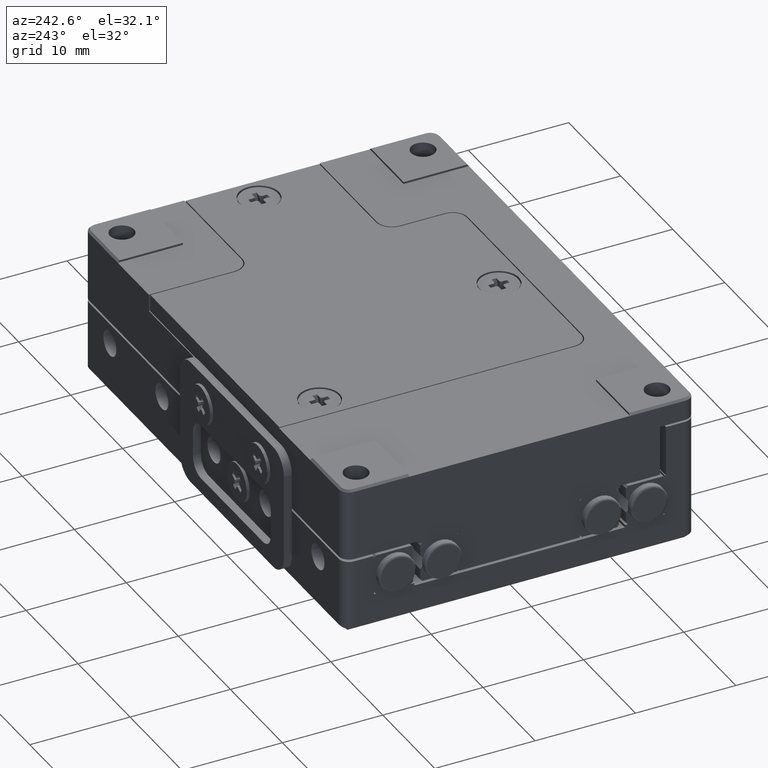
[diagram: clean part render]
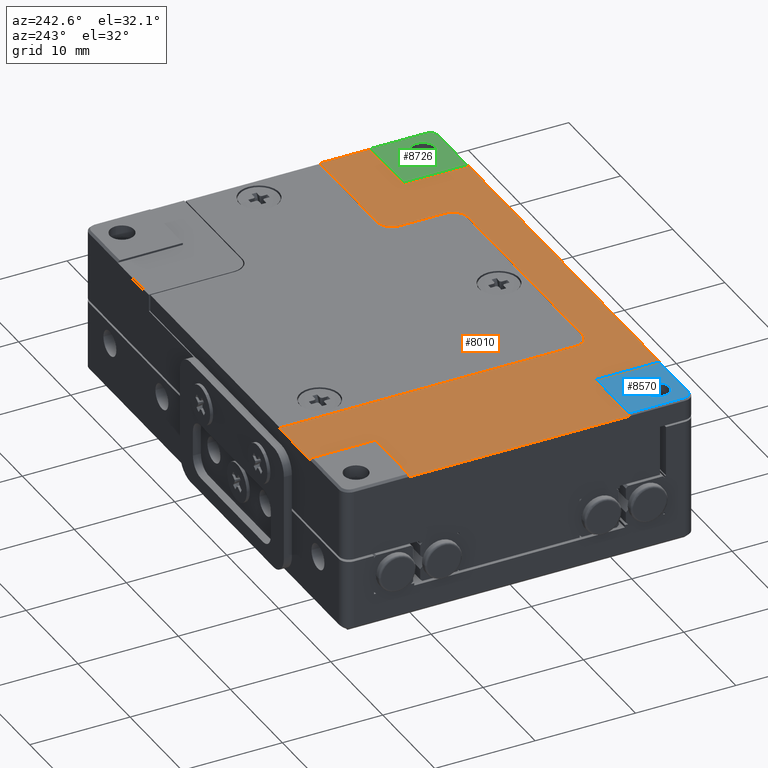
[diagram: same view with three faces highlighted in distinct colors, each labeled with its STEP entity id]
A machine part, auxiliary view with three faces highlighted in distinct colors.
Their STEP definitions:

[orange] entity #8010 — the highlighted planar face has unit normal (0, 0, 1).
#81 = CARTESIAN_POINT ( 'NONE',  ( -15.86842105263155212, 12.95546558704454121, 11.25000000000000000 ) ) ;
#145 = ORIENTED_EDGE ( 'NONE', *, *, #9059, .F. ) ;
#163 = VERTEX_POINT ( 'NONE', #5777 ) ;
#313 = LINE ( 'NONE', #11915, #6440 ) ;
#815 = EDGE_CURVE ( 'NONE', #12212, #1605, #7747, .T. ) ;
#889 = LINE ( 'NONE', #8131, #6152 ) ;
#893 = LINE ( 'NONE', #9526, #9835 ) ;
#938 = VECTOR ( 'NONE', #11252, 1000.000000000000000 ) ;
#1027 = VERTEX_POINT ( 'NONE', #7060 ) ;
#1207 = CARTESIAN_POINT ( 'NONE',  ( 21.13157894736844966, -15.54453441295544991, 11.25000000000000000 ) ) ;
#1507 = CARTESIAN_POINT ( 'NONE',  ( 27.63157894736844966, 12.95546558704454121, 11.25000000000000000 ) ) ;
#1577 = DIRECTION ( 'NONE',  ( 1.000000000000000000, 0.000000000000000000, 0.000000000000000000 ) ) ;
#1605 = VERTEX_POINT ( 'NONE', #6415 ) ;
#1650 = ORIENTED_EDGE ( 'NONE', *, *, #815, .F. ) ;
#1767 = FACE_OUTER_BOUND ( 'NONE', #12869, .T. ) ;
#1816 = DIRECTION ( 'NONE',  ( 1.000000000000000000, 0.000000000000000000, 0.000000000000000000 ) ) ;
#1847 = AXIS2_PLACEMENT_3D ( 'NONE', #9768, #2194, #10726 ) ;
#1850 = EDGE_CURVE ( 'NONE', #163, #12750, #5713, .T. ) ;
#1946 = VECTOR ( 'NONE', #13096, 1000.000000000000000 ) ;
#1980 = CARTESIAN_POINT ( 'NONE',  ( 15.13157894736844966, -16.54453441295544636, 11.25000000000000000 ) ) ;
#2194 = DIRECTION ( 'NONE',  ( 0.000000000000000000, 0.000000000000000000, -1.000000000000000000 ) ) ;
#2678 = LINE ( 'NONE', #13168, #1946 ) ;
#2783 = DIRECTION ( 'NONE',  ( 0.000000000000000000, 0.000000000000000000, 1.000000000000000000 ) ) ;
#2837 = CARTESIAN_POINT ( 'NONE',  ( -9.868421052631569879, 12.95546558704454121, 11.25000000000000000 ) ) ;
#2972 = CARTESIAN_POINT ( 'NONE',  ( 27.63157894736844966, -15.54453441295544991, 11.25000000000000000 ) ) ;
#3098 = EDGE_CURVE ( 'NONE', #1605, #4472, #6192, .T. ) ;
#3441 = CIRCLE ( 'NONE', #4101, 1.499999999999999556 ) ;
#3446 = CARTESIAN_POINT ( 'NONE',  ( -22.36842105263154679, -15.54453441295544991, 11.25000000000000000 ) ) ;
#3548 = CARTESIAN_POINT ( 'NONE',  ( -22.36842105263154679, 12.95546558704454121, 11.25000000000000000 ) ) ;
#3920 = CARTESIAN_POINT ( 'NONE',  ( 15.13157894736844966, -12.04453441295548011, 11.25000000000000000 ) ) ;
#3985 = ORIENTED_EDGE ( 'NONE', *, *, #3098, .F. ) ;
#4051 = VECTOR ( 'NONE', #1816, 1000.000000000000000 ) ;
#4075 = LINE ( 'NONE', #13518, #10079 ) ;
#4101 = AXIS2_PLACEMENT_3D ( 'NONE', #5019, #9236, #13472 ) ;
#4231 = ORIENTED_EDGE ( 'NONE', *, *, #13051, .F. ) ;
#4272 = LINE ( 'NONE', #1207, #5839 ) ;
#4338 = EDGE_CURVE ( 'NONE', #4890, #1027, #4272, .T. ) ;
#4440 = ORIENTED_EDGE ( 'NONE', *, *, #9043, .F. ) ;
#4472 = VERTEX_POINT ( 'NONE', #6701 ) ;
#4563 = CARTESIAN_POINT ( 'NONE',  ( -9.868421052631569879, 12.95546558704454121, 11.25000000000000000 ) ) ;
#4696 = CARTESIAN_POINT ( 'NONE',  ( 27.63157894736844966, -10.54453441295546057, 11.25000000000000000 ) ) ;
#4736 = EDGE_CURVE ( 'NONE', #9769, #5182, #7404, .T. ) ;
#4890 = VERTEX_POINT ( 'NONE', #8782 ) ;
#4946 = DIRECTION ( 'NONE',  ( -1.000000000000000000, 0.000000000000000000, 0.000000000000000000 ) ) ;
#5019 = CARTESIAN_POINT ( 'NONE',  ( 13.63157894736841946, -16.54453441295544636, 11.25000000000000000 ) ) ;
#5182 = VERTEX_POINT ( 'NONE', #10227 ) ;
#5250 = CARTESIAN_POINT ( 'NONE',  ( -15.86842105263155212, -15.54453441295544991, 11.25000000000000000 ) ) ;
#5713 = LINE ( 'NONE', #3548, #9596 ) ;
#5777 = CARTESIAN_POINT ( 'NONE',  ( -22.36842105263154679, 6.455465587044540321, 11.25000000000000000 ) ) ;
#5839 = VECTOR ( 'NONE', #10648, 1000.000000000000000 ) ;
#5875 = CARTESIAN_POINT ( 'NONE',  ( 13.63157894736841946, -18.04453441295544991, 11.25000000000000000 ) ) ;
#5877 = VECTOR ( 'NONE', #9801, 1000.000000000000000 ) ;
#5908 = DIRECTION ( 'NONE',  ( -1.000000000000000000, 0.000000000000000000, 0.000000000000000000 ) ) ;
#5940 = EDGE_CURVE ( 'NONE', #12593, #9769, #2678, .T. ) ;
#5993 = CARTESIAN_POINT ( 'NONE',  ( 27.63157894736844966, -22.04453441295544991, 11.25000000000000000 ) ) ;
#6025 = PLANE ( 'NONE',  #9081 ) ;
#6028 = VERTEX_POINT ( 'NONE', #8376 ) ;
#6068 = VECTOR ( 'NONE', #10899, 1000.000000000000000 ) ;
#6106 = DIRECTION ( 'NONE',  ( 1.000000000000000000, 0.000000000000000000, 0.000000000000000000 ) ) ;
#6152 = VECTOR ( 'NONE', #4946, 1000.000000000000000 ) ;
#6171 = LINE ( 'NONE', #12400, #13175 ) ;
#6192 = CIRCLE ( 'NONE', #11722, 1.499999999999999556 ) ;
#6199 = ORIENTED_EDGE ( 'NONE', *, *, #4736, .F. ) ;
#6415 = CARTESIAN_POINT ( 'NONE',  ( -9.868421052631569879, -16.54453441295544636, 11.25000000000000000 ) ) ;
#6438 = VERTEX_POINT ( 'NONE', #4696 ) ;
#6440 = VECTOR ( 'NONE', #10659, 1000.000000000000000 ) ;
#6493 = VECTOR ( 'NONE', #5908, 1000.000000000000000 ) ;
#6701 = CARTESIAN_POINT ( 'NONE',  ( -8.368421052631559220, -18.04453441295544991, 11.25000000000000000 ) ) ;
#6751 = LINE ( 'NONE', #9022, #5877 ) ;
#6815 = CARTESIAN_POINT ( 'NONE',  ( -8.368421052631569879, -16.54453441295544636, 11.25000000000000000 ) ) ;
#6984 = CARTESIAN_POINT ( 'NONE',  ( -15.86842105263155212, -22.04453441295544991, 11.25000000000000000 ) ) ;
#7049 = ORIENTED_EDGE ( 'NONE', *, *, #8618, .F. ) ;
#7060 = CARTESIAN_POINT ( 'NONE',  ( 21.13157894736844966, -22.04453441295544991, 11.25000000000000000 ) ) ;
#7072 = DIRECTION ( 'NONE',  ( -1.000000000000000000, 0.000000000000000000, 0.000000000000000000 ) ) ;
#7120 = LINE ( 'NONE', #11334, #4051 ) ;
#7404 = CIRCLE ( 'NONE', #1847, 1.499999999999999556 ) ;
#7527 = EDGE_CURVE ( 'NONE', #4472, #9722, #313, .T. ) ;
#7747 = LINE ( 'NONE', #4563, #8085 ) ;
#8010 = ADVANCED_FACE ( 'NONE', ( #1767 ), #6025, .T. ) ;
#8085 = VECTOR ( 'NONE', #12049, 1000.000000000000000 ) ;
#8131 = CARTESIAN_POINT ( 'NONE',  ( -22.36842105263154679, -15.54453441295544991, 11.25000000000000000 ) ) ;
#8161 = CARTESIAN_POINT ( 'NONE',  ( 0.000000000000000000, 0.000000000000000000, 11.25000000000000000 ) ) ;
#8376 = CARTESIAN_POINT ( 'NONE',  ( -15.86842105263155212, 6.455465587044540321, 11.25000000000000000 ) ) ;
#8408 = DIRECTION ( 'NONE',  ( 0.000000000000000000, 1.000000000000000000, 0.000000000000000000 ) ) ;
#8436 = ORIENTED_EDGE ( 'NONE', *, *, #10437, .F. ) ;
#8441 = ORIENTED_EDGE ( 'NONE', *, *, #4338, .F. ) ;
#8499 = ORIENTED_EDGE ( 'NONE', *, *, #11590, .T. ) ;
#8618 = EDGE_CURVE ( 'NONE', #163, #6028, #6751, .T. ) ;
#8782 = CARTESIAN_POINT ( 'NONE',  ( 21.13157894736844966, -15.54453441295544991, 11.25000000000000000 ) ) ;
#8869 = EDGE_CURVE ( 'NONE', #9722, #12593, #3441, .T. ) ;
#9022 = CARTESIAN_POINT ( 'NONE',  ( -15.86842105263155212, 6.455465587044540321, 11.25000000000000000 ) ) ;
#9043 = EDGE_CURVE ( 'NONE', #5182, #6438, #4075, .T. ) ;
#9059 = EDGE_CURVE ( 'NONE', #13416, #4890, #6171, .T. ) ;
#9081 = AXIS2_PLACEMENT_3D ( 'NONE', #8161, #12394, #12876 ) ;
#9088 = VERTEX_POINT ( 'NONE', #13661 ) ;
#9236 = DIRECTION ( 'NONE',  ( 0.000000000000000000, 0.000000000000000000, 1.000000000000000000 ) ) ;
#9526 = CARTESIAN_POINT ( 'NONE',  ( -15.86842105263155212, -15.54453441295544991, 11.25000000000000000 ) ) ;
#9596 = VECTOR ( 'NONE', #12855, 1000.000000000000000 ) ;
#9722 = VERTEX_POINT ( 'NONE', #5875 ) ;
#9768 = CARTESIAN_POINT ( 'NONE',  ( 16.63157894736844966, -12.04453441295546057, 11.25000000000000000 ) ) ;
#9769 = VERTEX_POINT ( 'NONE', #3920 ) ;
#9801 = DIRECTION ( 'NONE',  ( 1.000000000000000000, 1.334402673828311860E-16, 0.000000000000000000 ) ) ;
#9835 = VECTOR ( 'NONE', #8408, 1000.000000000000000 ) ;
#9926 = ORIENTED_EDGE ( 'NONE', *, *, #11429, .F. ) ;
#10079 = VECTOR ( 'NONE', #6106, 1000.000000000000000 ) ;
#10141 = LINE ( 'NONE', #5993, #938 ) ;
#10227 = CARTESIAN_POINT ( 'NONE',  ( 16.63157894736844966, -10.54453441295546057, 11.25000000000000000 ) ) ;
#10437 = EDGE_CURVE ( 'NONE', #11323, #12750, #889, .T. ) ;
#10648 = DIRECTION ( 'NONE',  ( 0.000000000000000000, -1.000000000000000000, 0.000000000000000000 ) ) ;
#10659 = DIRECTION ( 'NONE',  ( 1.000000000000000000, 0.000000000000000000, 0.000000000000000000 ) ) ;
#10726 = DIRECTION ( 'NONE',  ( -1.000000000000000000, 0.000000000000000000, 0.000000000000000000 ) ) ;
#10842 = LINE ( 'NONE', #81, #6068 ) ;
#10899 = DIRECTION ( 'NONE',  ( 0.000000000000000000, 1.000000000000000000, 0.000000000000000000 ) ) ;
#11026 = ORIENTED_EDGE ( 'NONE', *, *, #5940, .F. ) ;
#11096 = VERTEX_POINT ( 'NONE', #6984 ) ;
#11167 = EDGE_CURVE ( 'NONE', #11096, #1027, #7120, .T. ) ;
#11252 = DIRECTION ( 'NONE',  ( 9.912705577010319386E-17, 1.000000000000000000, 0.000000000000000000 ) ) ;
#11323 = VERTEX_POINT ( 'NONE', #5250 ) ;
#11334 = CARTESIAN_POINT ( 'NONE',  ( -22.36842105263154679, -22.04453441295544991, 11.25000000000000000 ) ) ;
#11429 = EDGE_CURVE ( 'NONE', #6028, #9088, #10842, .T. ) ;
#11506 = ORIENTED_EDGE ( 'NONE', *, *, #1850, .T. ) ;
#11590 = EDGE_CURVE ( 'NONE', #13416, #6438, #10141, .T. ) ;
#11722 = AXIS2_PLACEMENT_3D ( 'NONE', #6815, #2783, #1577 ) ;
#11915 = CARTESIAN_POINT ( 'NONE',  ( -8.368421052631559220, -18.04453441295544991, 11.25000000000000000 ) ) ;
#12031 = EDGE_CURVE ( 'NONE', #12212, #9088, #13104, .T. ) ;
#12049 = DIRECTION ( 'NONE',  ( 1.176083712526649935E-16, -1.000000000000000000, 0.000000000000000000 ) ) ;
#12212 = VERTEX_POINT ( 'NONE', #2837 ) ;
#12394 = DIRECTION ( 'NONE',  ( 0.000000000000000000, 0.000000000000000000, 1.000000000000000000 ) ) ;
#12400 = CARTESIAN_POINT ( 'NONE',  ( 27.63157894736844966, -15.54453441295544991, 11.25000000000000000 ) ) ;
#12593 = VERTEX_POINT ( 'NONE', #1980 ) ;
#12750 = VERTEX_POINT ( 'NONE', #3446 ) ;
#12838 = ORIENTED_EDGE ( 'NONE', *, *, #11167, .T. ) ;
#12855 = DIRECTION ( 'NONE',  ( 1.982541115402064617E-16, -1.000000000000000000, 0.000000000000000000 ) ) ;
#12869 = EDGE_LOOP ( 'NONE', ( #4440, #6199, #11026, #13647, #13326, #3985, #1650, #13159, #9926, #7049, #11506, #8436, #4231, #12838, #8441, #145, #8499 ) ) ;
#12876 = DIRECTION ( 'NONE',  ( 1.000000000000000000, 0.000000000000000000, 0.000000000000000000 ) ) ;
#13051 = EDGE_CURVE ( 'NONE', #11096, #11323, #893, .T. ) ;
#13096 = DIRECTION ( 'NONE',  ( 0.000000000000000000, 1.000000000000000000, 0.000000000000000000 ) ) ;
#13104 = LINE ( 'NONE', #1507, #6493 ) ;
#13159 = ORIENTED_EDGE ( 'NONE', *, *, #12031, .T. ) ;
#13168 = CARTESIAN_POINT ( 'NONE',  ( 15.13157894736844966, -16.54453441295544636, 11.25000000000000000 ) ) ;
#13175 = VECTOR ( 'NONE', #7072, 1000.000000000000000 ) ;
#13326 = ORIENTED_EDGE ( 'NONE', *, *, #7527, .F. ) ;
#13416 = VERTEX_POINT ( 'NONE', #2972 ) ;
#13472 = DIRECTION ( 'NONE',  ( 1.000000000000000000, 0.000000000000000000, 0.000000000000000000 ) ) ;
#13518 = CARTESIAN_POINT ( 'NONE',  ( 16.63157894736844966, -10.54453441295546057, 11.25000000000000000 ) ) ;
#13647 = ORIENTED_EDGE ( 'NONE', *, *, #8869, .F. ) ;
#13661 = CARTESIAN_POINT ( 'NONE',  ( -15.86842105263155212, 12.95546558704454121, 11.25000000000000000 ) ) ;

[blue] entity #8570 — the highlighted planar face has unit normal (0, 0, -1).
#435 = CARTESIAN_POINT ( 'NONE',  ( -22.16842105263154750, -15.54453441295544991, 11.44999999999999929 ) ) ;
#470 = DIRECTION ( 'NONE',  ( 0.000000000000000000, 0.000000000000000000, -1.000000000000000000 ) ) ;
#533 = VERTEX_POINT ( 'NONE', #9780 ) ;
#784 = ORIENTED_EDGE ( 'NONE', *, *, #12944, .T. ) ;
#886 = VERTEX_POINT ( 'NONE', #435 ) ;
#896 = CARTESIAN_POINT ( 'NONE',  ( -22.36842105263154679, -15.54453441295544991, 11.44999999999999929 ) ) ;
#1198 = CIRCLE ( 'NONE', #2976, 1.199999999999999734 ) ;
#1344 = VERTEX_POINT ( 'NONE', #5529 ) ;
#1657 = CARTESIAN_POINT ( 'NONE',  ( -21.36842105263155034, -21.04453441295544636, 11.44999999999999929 ) ) ;
#1948 = AXIS2_PLACEMENT_3D ( 'NONE', #1657, #11033, #5781 ) ;
#2154 = LINE ( 'NONE', #896, #3406 ) ;
#2266 = CARTESIAN_POINT ( 'NONE',  ( -18.66842105263155460, -19.54453441295544991, 11.44999999999999929 ) ) ;
#2497 = PLANE ( 'NONE',  #5210 ) ;
#2538 = LINE ( 'NONE', #9960, #5972 ) ;
#2695 = EDGE_LOOP ( 'NONE', ( #784, #2778 ) ) ;
#2778 = ORIENTED_EDGE ( 'NONE', *, *, #8661, .T. ) ;
#2795 = CARTESIAN_POINT ( 'NONE',  ( -19.86842105263155389, -19.54453441295544991, 11.44999999999999929 ) ) ;
#2976 = AXIS2_PLACEMENT_3D ( 'NONE', #5716, #8760, #11890 ) ;
#3026 = EDGE_CURVE ( 'NONE', #9553, #4256, #9936, .T. ) ;
#3252 = LINE ( 'NONE', #3380, #3967 ) ;
#3380 = CARTESIAN_POINT ( 'NONE',  ( -15.86842105263155212, -15.54453441295544991, 11.44999999999999929 ) ) ;
#3406 = VECTOR ( 'NONE', #7445, 1000.000000000000000 ) ;
#3786 = DIRECTION ( 'NONE',  ( 1.982541115402064617E-16, -1.000000000000000000, 0.000000000000000000 ) ) ;
#3967 = VECTOR ( 'NONE', #4490, 1000.000000000000000 ) ;
#4256 = VERTEX_POINT ( 'NONE', #8503 ) ;
#4490 = DIRECTION ( 'NONE',  ( 0.000000000000000000, 1.000000000000000000, 0.000000000000000000 ) ) ;
#4732 = CARTESIAN_POINT ( 'NONE',  ( 0.000000000000000000, 0.000000000000000000, 11.44999999999999929 ) ) ;
#5065 = EDGE_CURVE ( 'NONE', #1344, #886, #2154, .T. ) ;
#5210 = AXIS2_PLACEMENT_3D ( 'NONE', #4732, #470, #13114 ) ;
#5529 = CARTESIAN_POINT ( 'NONE',  ( -15.86842105263155212, -15.54453441295544991, 11.44999999999999929 ) ) ;
#5630 = AXIS2_PLACEMENT_3D ( 'NONE', #2795, #11320, #8781 ) ;
#5716 = CARTESIAN_POINT ( 'NONE',  ( -19.86842105263155389, -19.54453441295544991, 11.44999999999999929 ) ) ;
#5773 = ORIENTED_EDGE ( 'NONE', *, *, #5065, .T. ) ;
#5781 = DIRECTION ( 'NONE',  ( -1.000000000000000000, 0.000000000000000000, 0.000000000000000000 ) ) ;
#5972 = VECTOR ( 'NONE', #3786, 1000.000000000000000 ) ;
#6198 = EDGE_CURVE ( 'NONE', #533, #1344, #3252, .T. ) ;
#6366 = VECTOR ( 'NONE', #7238, 1000.000000000000000 ) ;
#6436 = EDGE_CURVE ( 'NONE', #886, #9553, #2538, .T. ) ;
#6959 = VERTEX_POINT ( 'NONE', #8071 ) ;
#7238 = DIRECTION ( 'NONE',  ( 1.000000000000000000, 0.000000000000000000, 0.000000000000000000 ) ) ;
#7431 = EDGE_LOOP ( 'NONE', ( #10171, #11044, #13418, #5773, #13690 ) ) ;
#7445 = DIRECTION ( 'NONE',  ( -1.000000000000000000, 0.000000000000000000, 0.000000000000000000 ) ) ;
#8071 = CARTESIAN_POINT ( 'NONE',  ( -21.06842105263155318, -19.54453441295544991, 11.44999999999999929 ) ) ;
#8266 = CIRCLE ( 'NONE', #5630, 1.199999999999999734 ) ;
#8503 = CARTESIAN_POINT ( 'NONE',  ( -21.36842105263155034, -21.84453441295550036, 11.44999999999999929 ) ) ;
#8570 = ADVANCED_FACE ( 'NONE', ( #10699, #9462 ), #2497, .F. ) ;
#8661 = EDGE_CURVE ( 'NONE', #9217, #6959, #1198, .T. ) ;
#8760 = DIRECTION ( 'NONE',  ( 0.000000000000000000, 0.000000000000000000, -1.000000000000000000 ) ) ;
#8781 = DIRECTION ( 'NONE',  ( -1.000000000000000000, 0.000000000000000000, 0.000000000000000000 ) ) ;
#9217 = VERTEX_POINT ( 'NONE', #2266 ) ;
#9240 = LINE ( 'NONE', #12494, #6366 ) ;
#9462 = FACE_BOUND ( 'NONE', #2695, .T. ) ;
#9484 = CARTESIAN_POINT ( 'NONE',  ( -22.16842105263154750, -21.04453441295544636, 11.44999999999999929 ) ) ;
#9553 = VERTEX_POINT ( 'NONE', #9484 ) ;
#9780 = CARTESIAN_POINT ( 'NONE',  ( -15.86842105263155212, -21.84453441295550036, 11.44999999999999929 ) ) ;
#9936 = CIRCLE ( 'NONE', #1948, 0.8000000000000090372 ) ;
#9960 = CARTESIAN_POINT ( 'NONE',  ( -22.16842105263154750, -4.394980620038685110E-15, 11.44999999999999929 ) ) ;
#10171 = ORIENTED_EDGE ( 'NONE', *, *, #3026, .T. ) ;
#10329 = EDGE_CURVE ( 'NONE', #4256, #533, #9240, .T. ) ;
#10699 = FACE_OUTER_BOUND ( 'NONE', #7431, .T. ) ;
#11033 = DIRECTION ( 'NONE',  ( 0.000000000000000000, 0.000000000000000000, 1.000000000000000000 ) ) ;
#11044 = ORIENTED_EDGE ( 'NONE', *, *, #10329, .T. ) ;
#11320 = DIRECTION ( 'NONE',  ( 0.000000000000000000, 0.000000000000000000, -1.000000000000000000 ) ) ;
#11890 = DIRECTION ( 'NONE',  ( -1.000000000000000000, 0.000000000000000000, 0.000000000000000000 ) ) ;
#12494 = CARTESIAN_POINT ( 'NONE',  ( 0.000000000000000000, -21.84453441295550036, 11.44999999999999929 ) ) ;
#12944 = EDGE_CURVE ( 'NONE', #6959, #9217, #8266, .T. ) ;
#13114 = DIRECTION ( 'NONE',  ( 0.000000000000000000, -1.000000000000000000, 0.000000000000000000 ) ) ;
#13418 = ORIENTED_EDGE ( 'NONE', *, *, #6198, .T. ) ;
#13690 = ORIENTED_EDGE ( 'NONE', *, *, #6436, .T. ) ;

[green] entity #8726 — the highlighted planar face has unit normal (0, 0, 1).
#74 = ORIENTED_EDGE ( 'NONE', *, *, #5575, .T. ) ;
#393 = EDGE_CURVE ( 'NONE', #8128, #11803, #7758, .T. ) ;
#442 = VERTEX_POINT ( 'NONE', #13236 ) ;
#581 = VECTOR ( 'NONE', #4704, 1000.000000000000000 ) ;
#821 = DIRECTION ( 'NONE',  ( -1.000000000000000000, 0.000000000000000000, 0.000000000000000000 ) ) ;
#876 = CARTESIAN_POINT ( 'NONE',  ( 26.63157894736844966, -21.84453441295550036, 11.44999999999999929 ) ) ;
#1633 = AXIS2_PLACEMENT_3D ( 'NONE', #5921, #10403, #10136 ) ;
#1880 = CIRCLE ( 'NONE', #3229, 1.199999999999999734 ) ;
#1931 = DIRECTION ( 'NONE',  ( 1.000000000000000000, 0.000000000000000000, 0.000000000000000000 ) ) ;
#2285 = VERTEX_POINT ( 'NONE', #8534 ) ;
#2500 = VERTEX_POINT ( 'NONE', #5115 ) ;
#2575 = CIRCLE ( 'NONE', #3256, 1.199999999999999734 ) ;
#2703 = FACE_BOUND ( 'NONE', #9755, .T. ) ;
#2809 = DIRECTION ( 'NONE',  ( -1.000000000000000000, 0.000000000000000000, 0.000000000000000000 ) ) ;
#2969 = VECTOR ( 'NONE', #2809, 1000.000000000000000 ) ;
#3061 = AXIS2_PLACEMENT_3D ( 'NONE', #7230, #11451, #1931 ) ;
#3229 = AXIS2_PLACEMENT_3D ( 'NONE', #13681, #12632, #12566 ) ;
#3256 = AXIS2_PLACEMENT_3D ( 'NONE', #6137, #10349, #821 ) ;
#3662 = EDGE_LOOP ( 'NONE', ( #12347, #74, #4561, #7456, #6450 ) ) ;
#3733 = CARTESIAN_POINT ( 'NONE',  ( 21.13157894736844966, -15.54453441295544991, 11.44999999999999929 ) ) ;
#3755 = FACE_OUTER_BOUND ( 'NONE', #3662, .T. ) ;
#4026 = CARTESIAN_POINT ( 'NONE',  ( 21.13157894736844966, -21.84453441295550036, 11.44999999999999929 ) ) ;
#4260 = ORIENTED_EDGE ( 'NONE', *, *, #8887, .T. ) ;
#4561 = ORIENTED_EDGE ( 'NONE', *, *, #5591, .T. ) ;
#4704 = DIRECTION ( 'NONE',  ( 0.000000000000000000, -1.000000000000000000, 0.000000000000000000 ) ) ;
#5115 = CARTESIAN_POINT ( 'NONE',  ( 23.93157894736845037, -19.54453441295544991, 11.44999999999999929 ) ) ;
#5575 = EDGE_CURVE ( 'NONE', #11803, #13278, #9290, .T. ) ;
#5591 = EDGE_CURVE ( 'NONE', #13278, #2285, #13493, .T. ) ;
#5879 = CARTESIAN_POINT ( 'NONE',  ( 27.63157894736844966, -15.54453441295544991, 11.44999999999999929 ) ) ;
#5921 = CARTESIAN_POINT ( 'NONE',  ( 0.000000000000000000, 0.000000000000000000, 11.44999999999999929 ) ) ;
#6018 = EDGE_CURVE ( 'NONE', #2285, #9012, #10248, .T. ) ;
#6137 = CARTESIAN_POINT ( 'NONE',  ( 25.13157894736844966, -19.54453441295544991, 11.44999999999999929 ) ) ;
#6420 = VECTOR ( 'NONE', #7276, 1000.000000000000000 ) ;
#6450 = ORIENTED_EDGE ( 'NONE', *, *, #11014, .T. ) ;
#6548 = CARTESIAN_POINT ( 'NONE',  ( 26.63157894736844966, -21.84453441295550036, 11.44999999999999929 ) ) ;
#7230 = CARTESIAN_POINT ( 'NONE',  ( 26.63157894736844966, -21.04453441295544636, 11.44999999999999929 ) ) ;
#7276 = DIRECTION ( 'NONE',  ( 9.912705577010329247E-17, 1.000000000000000000, 0.000000000000000000 ) ) ;
#7456 = ORIENTED_EDGE ( 'NONE', *, *, #6018, .T. ) ;
#7472 = CARTESIAN_POINT ( 'NONE',  ( 21.13157894736844966, -15.54453441295544991, 11.44999999999999929 ) ) ;
#7640 = VECTOR ( 'NONE', #9358, 1000.000000000000000 ) ;
#7758 = LINE ( 'NONE', #3733, #581 ) ;
#8128 = VERTEX_POINT ( 'NONE', #7472 ) ;
#8234 = CARTESIAN_POINT ( 'NONE',  ( 27.43157894736845037, -15.54453441295544991, 11.44999999999999929 ) ) ;
#8534 = CARTESIAN_POINT ( 'NONE',  ( 27.43157894736845037, -21.04453441295544636, 11.44999999999999929 ) ) ;
#8726 = ADVANCED_FACE ( 'NONE', ( #3755, #2703 ), #11457, .T. ) ;
#8887 = EDGE_CURVE ( 'NONE', #442, #2500, #1880, .T. ) ;
#9012 = VERTEX_POINT ( 'NONE', #8234 ) ;
#9290 = LINE ( 'NONE', #876, #7640 ) ;
#9358 = DIRECTION ( 'NONE',  ( 1.000000000000000000, 0.000000000000000000, 0.000000000000000000 ) ) ;
#9755 = EDGE_LOOP ( 'NONE', ( #13233, #4260 ) ) ;
#10096 = LINE ( 'NONE', #5879, #2969 ) ;
#10136 = DIRECTION ( 'NONE',  ( 1.000000000000000000, 0.000000000000000000, 0.000000000000000000 ) ) ;
#10248 = LINE ( 'NONE', #10321, #6420 ) ;
#10321 = CARTESIAN_POINT ( 'NONE',  ( 27.43157894736845037, -15.54453441295544991, 11.44999999999999929 ) ) ;
#10349 = DIRECTION ( 'NONE',  ( 0.000000000000000000, 0.000000000000000000, -1.000000000000000000 ) ) ;
#10403 = DIRECTION ( 'NONE',  ( 0.000000000000000000, 0.000000000000000000, 1.000000000000000000 ) ) ;
#10487 = EDGE_CURVE ( 'NONE', #2500, #442, #2575, .T. ) ;
#11014 = EDGE_CURVE ( 'NONE', #9012, #8128, #10096, .T. ) ;
#11451 = DIRECTION ( 'NONE',  ( 0.000000000000000000, 0.000000000000000000, 1.000000000000000000 ) ) ;
#11457 = PLANE ( 'NONE',  #1633 ) ;
#11803 = VERTEX_POINT ( 'NONE', #4026 ) ;
#12347 = ORIENTED_EDGE ( 'NONE', *, *, #393, .T. ) ;
#12566 = DIRECTION ( 'NONE',  ( -1.000000000000000000, 0.000000000000000000, 0.000000000000000000 ) ) ;
#12632 = DIRECTION ( 'NONE',  ( 0.000000000000000000, 0.000000000000000000, -1.000000000000000000 ) ) ;
#13233 = ORIENTED_EDGE ( 'NONE', *, *, #10487, .T. ) ;
#13236 = CARTESIAN_POINT ( 'NONE',  ( 26.33157894736844895, -19.54453441295544991, 11.44999999999999929 ) ) ;
#13278 = VERTEX_POINT ( 'NONE', #6548 ) ;
#13493 = CIRCLE ( 'NONE', #3061, 0.8000000000000090372 ) ;
#13681 = CARTESIAN_POINT ( 'NONE',  ( 25.13157894736844966, -19.54453441295544991, 11.44999999999999929 ) ) ;